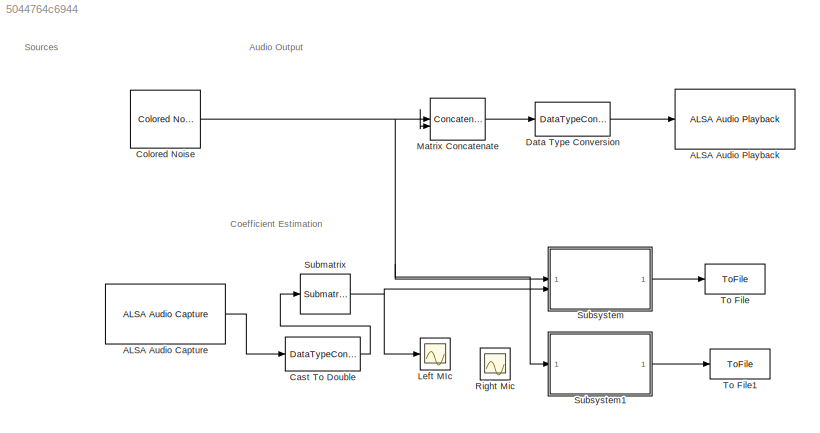
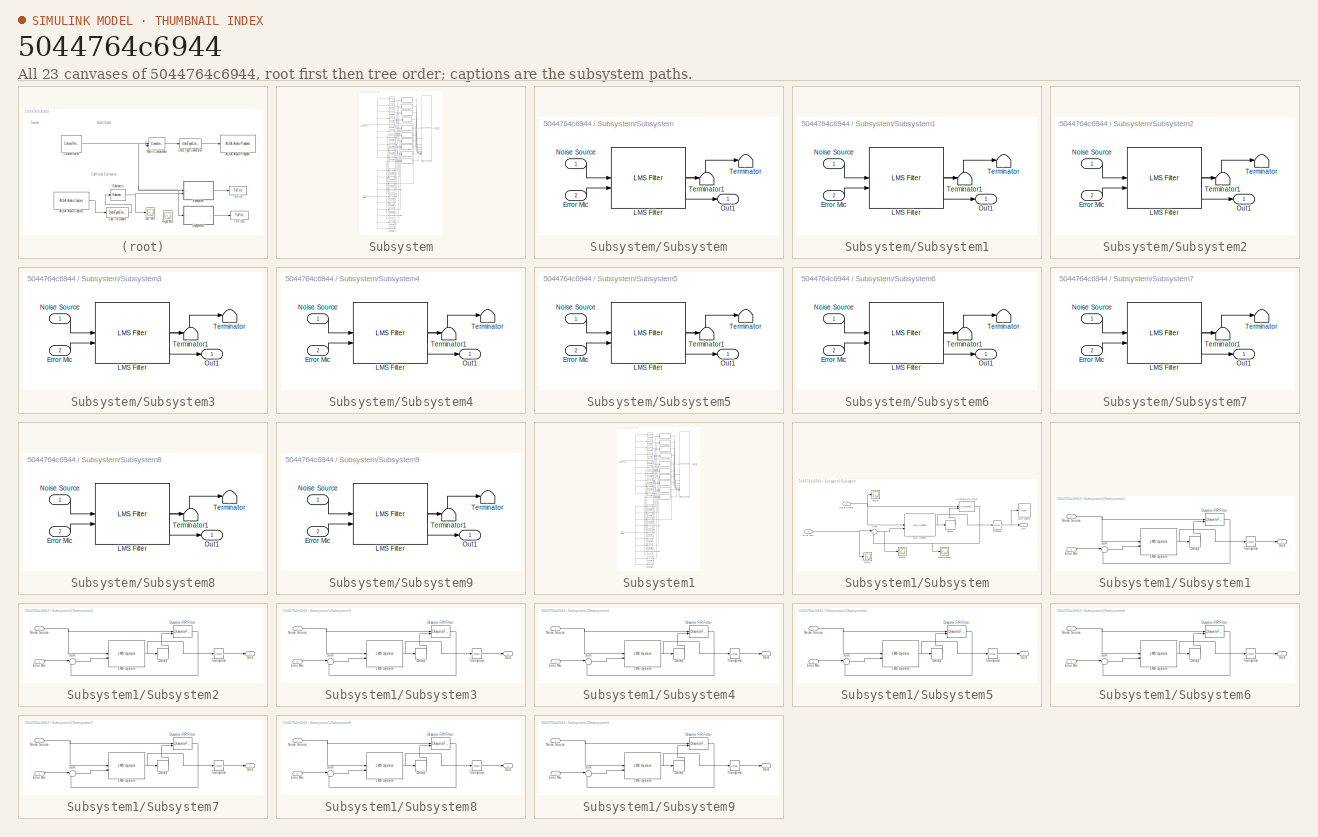
[diagram: thumbnail index - all 23 canvases of the model, root first then tree order]
MODEL slx_5044764c6944
KIND model
CONFIG AbsTol = auto
CONFIG EnableMultiTasking = on
CONFIG FixedStep = auto
CONFIG MaxStep = auto
CONFIG MinStep = auto
CONFIG RelTol = 1e-3
CONFIG SampleTimeConstraint = Unconstrained
CONFIG SolverName = FixedStepAuto
CONFIG StartTime = 0.0
CONFIG StopTime = inf
BLOCK [Reference] ALSA Audio Capture  REF=raspberrypiAVlib/ALSA Audio Capture
  SourceBlock = raspberrypiAVlib/ALSA Audio Capture
  SourceType = codertarget.raspi.internal.RaspiALSAAudioCapture
BLOCK [Reference] ALSA Audio Playback  REF=raspberrypiAVlib/ALSA Audio Playback
  SourceBlock = raspberrypiAVlib/ALSA Audio Playback
  SourceType = codertarget.raspi.internal.RaspiALSAAudioPlayback
BLOCK [DataTypeConversion] Cast To Double
  OutDataTypeStr = double
  RndMeth = Floor
  SaturateOnIntegerOverflow = off
BLOCK [Reference] Colored Noise  REF=dspsrcs4/Colored Noise
  LibrarySourceBlock = audiosources/Colored Noise
  SourceBlock = dspsrcs4/Colored Noise
  SourceType = dsp.simulink.ColoredNoise
BLOCK [DataTypeConversion] Data Type Conversion
  OutDataTypeStr = int16
  RndMeth = Floor
  SaturateOnIntegerOverflow = off
BLOCK [Scope] Left MIc
  Commented = on
  Floating = off
  NumInputPorts = 1
  ScopeSpecificationString = Simulink.scopes.TimeScopeBlockCfg('CurrentConfiguration', extmgr.ConfigurationSet(extmgr.Configuration('Core','General UI',true),extmgr.Configuration('Core','Source UI',true),extmgr.Configuration('Sources','WiredSimulink',true),extmgr.Configuration('Visuals','Time Domain',true,'SerializedDisplays',{struct('MinYLimReal','-5409.625','MaxYLimReal','4796.625','YLabelReal','','MinYLimMag','  0.00000','...<+1652ch>
BLOCK [Concatenate] Matrix Concatenate
  ConcatenateDimension = 2
  Mode = Multidimensional array
BLOCK [Scope] Right Mic
  Commented = on
  Floating = off
  NumInputPorts = 1
  ScopeSpecificationString = Simulink.scopes.TimeScopeBlockCfg('CurrentConfiguration', extmgr.ConfigurationSet(extmgr.Configuration('Core','General UI',true),extmgr.Configuration('Core','Source UI',true),extmgr.Configuration('Sources','WiredSimulink',true,'DataLoggingVariableName','ScopeData1'),extmgr.Configuration('Visuals','Time Domain',true,'SerializedDisplays',{struct('MinYLimReal','-5365.875','MaxYLimReal','4552.875','YL...<+1692ch>
BLOCK [Reference] Submatrix  REF=matrix_library/Submatrix
  LibrarySourceBlock = simulink/Matrix\nOperations/Submatrix
  SourceBlock = matrix_library/Submatrix
  SourceType = Submatrix
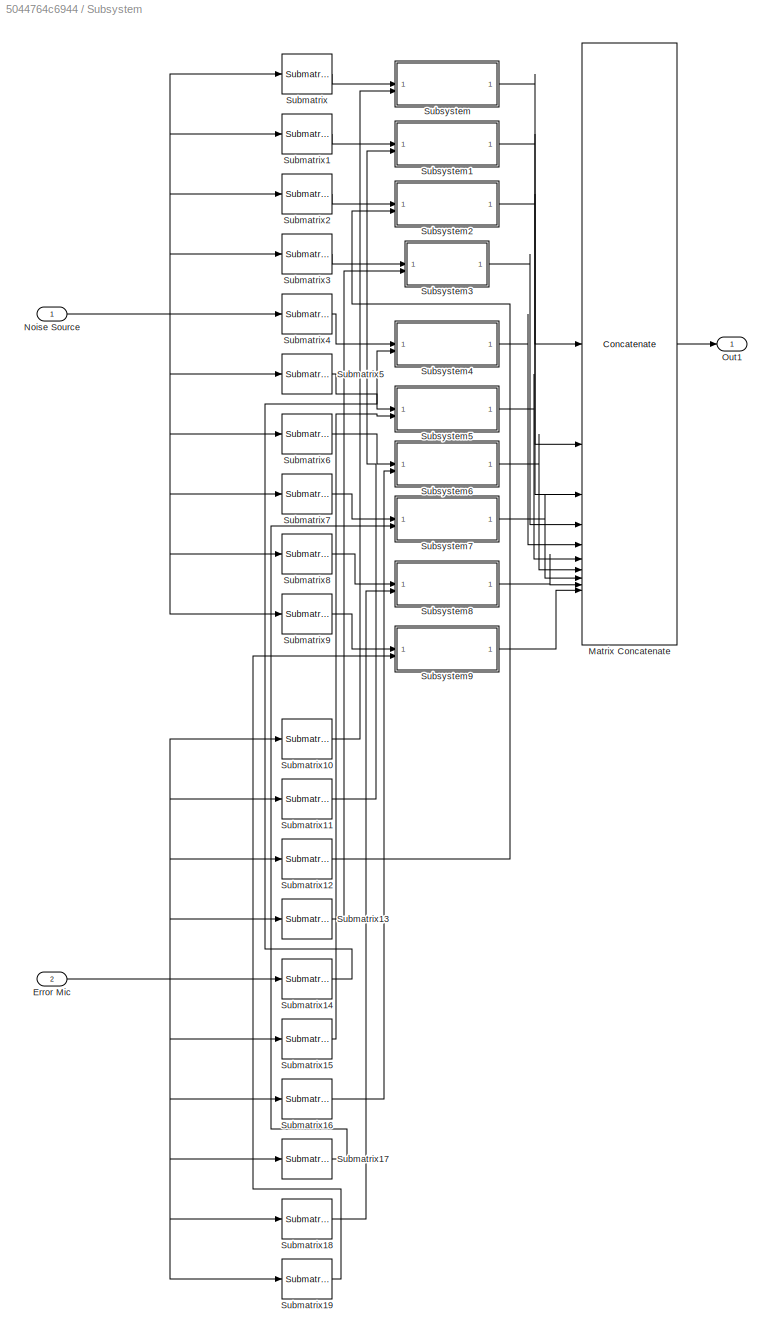
BLOCK [SubSystem] Subsystem
BLOCK [Inport] Subsystem/Error Mic
  Port = 2
BLOCK [Concatenate] Subsystem/Matrix Concatenate
  Mode = Multidimensional array
  NumInputs = 10
BLOCK [Inport] Subsystem/Noise Source
BLOCK [Outport] Subsystem/Out1
BLOCK [Reference] Subsystem/Submatrix  REF=matrix_library/Submatrix
  LibrarySourceBlock = simulink/Matrix\nOperations/Submatrix
  SourceBlock = matrix_library/Submatrix
  SourceType = Submatrix
BLOCK [Reference] Subsystem/Submatrix1  REF=matrix_library/Submatrix
  LibrarySourceBlock = simulink/Matrix\nOperations/Submatrix
  SourceBlock = matrix_library/Submatrix
  SourceType = Submatrix
BLOCK [Reference] Subsystem/Submatrix10  REF=matrix_library/Submatrix
  LibrarySourceBlock = simulink/Matrix\nOperations/Submatrix
  SourceBlock = matrix_library/Submatrix
  SourceType = Submatrix
BLOCK [Reference] Subsystem/Submatrix11  REF=matrix_library/Submatrix
  LibrarySourceBlock = simulink/Matrix\nOperations/Submatrix
  SourceBlock = matrix_library/Submatrix
  SourceType = Submatrix
BLOCK [Reference] Subsystem/Submatrix12  REF=matrix_library/Submatrix
  LibrarySourceBlock = simulink/Matrix\nOperations/Submatrix
  SourceBlock = matrix_library/Submatrix
  SourceType = Submatrix
BLOCK [Reference] Subsystem/Submatrix13  REF=matrix_library/Submatrix
  LibrarySourceBlock = simulink/Matrix\nOperations/Submatrix
  SourceBlock = matrix_library/Submatrix
  SourceType = Submatrix
BLOCK [Reference] Subsystem/Submatrix14  REF=matrix_library/Submatrix
  LibrarySourceBlock = simulink/Matrix\nOperations/Submatrix
  SourceBlock = matrix_library/Submatrix
  SourceType = Submatrix
BLOCK [Reference] Subsystem/Submatrix15  REF=matrix_library/Submatrix
  LibrarySourceBlock = simulink/Matrix\nOperations/Submatrix
  SourceBlock = matrix_library/Submatrix
  SourceType = Submatrix
BLOCK [Reference] Subsystem/Submatrix16  REF=matrix_library/Submatrix
  LibrarySourceBlock = simulink/Matrix\nOperations/Submatrix
  SourceBlock = matrix_library/Submatrix
  SourceType = Submatrix
BLOCK [Reference] Subsystem/Submatrix17  REF=matrix_library/Submatrix
  LibrarySourceBlock = simulink/Matrix\nOperations/Submatrix
  SourceBlock = matrix_library/Submatrix
  SourceType = Submatrix
BLOCK [Reference] Subsystem/Submatrix18  REF=matrix_library/Submatrix
  LibrarySourceBlock = simulink/Matrix\nOperations/Submatrix
  SourceBlock = matrix_library/Submatrix
  SourceType = Submatrix
BLOCK [Reference] Subsystem/Submatrix19  REF=matrix_library/Submatrix
  LibrarySourceBlock = simulink/Matrix\nOperations/Submatrix
  SourceBlock = matrix_library/Submatrix
  SourceType = Submatrix
BLOCK [Reference] Subsystem/Submatrix2  REF=matrix_library/Submatrix
  LibrarySourceBlock = simulink/Matrix\nOperations/Submatrix
  SourceBlock = matrix_library/Submatrix
  SourceType = Submatrix
BLOCK [Reference] Subsystem/Submatrix3  REF=matrix_library/Submatrix
  LibrarySourceBlock = simulink/Matrix\nOperations/Submatrix
  SourceBlock = matrix_library/Submatrix
  SourceType = Submatrix
BLOCK [Reference] Subsystem/Submatrix4  REF=matrix_library/Submatrix
  LibrarySourceBlock = simulink/Matrix\nOperations/Submatrix
  SourceBlock = matrix_library/Submatrix
  SourceType = Submatrix
BLOCK [Reference] Subsystem/Submatrix5  REF=matrix_library/Submatrix
  LibrarySourceBlock = simulink/Matrix\nOperations/Submatrix
  SourceBlock = matrix_library/Submatrix
  SourceType = Submatrix
BLOCK [Reference] Subsystem/Submatrix6  REF=matrix_library/Submatrix
  LibrarySourceBlock = simulink/Matrix\nOperations/Submatrix
  SourceBlock = matrix_library/Submatrix
  SourceType = Submatrix
BLOCK [Reference] Subsystem/Submatrix7  REF=matrix_library/Submatrix
  LibrarySourceBlock = simulink/Matrix\nOperations/Submatrix
  SourceBlock = matrix_library/Submatrix
  SourceType = Submatrix
BLOCK [Reference] Subsystem/Submatrix8  REF=matrix_library/Submatrix
  LibrarySourceBlock = simulink/Matrix\nOperations/Submatrix
  SourceBlock = matrix_library/Submatrix
  SourceType = Submatrix
BLOCK [Reference] Subsystem/Submatrix9  REF=matrix_library/Submatrix
  LibrarySourceBlock = simulink/Matrix\nOperations/Submatrix
  SourceBlock = matrix_library/Submatrix
  SourceType = Submatrix
BLOCK [SubSystem] Subsystem/Subsystem
BLOCK [Inport] Subsystem/Subsystem/Error Mic
  Port = 2
BLOCK [Reference] Subsystem/Subsystem/LMS Filter  REF=dspadpt3/LMS Filter
  SourceBlock = dspadpt3/LMS Filter
  SourceType = LMS Filter
BLOCK [Inport] Subsystem/Subsystem/Noise Source
BLOCK [Outport] Subsystem/Subsystem/Out1
BLOCK [Terminator] Subsystem/Subsystem/Terminator
BLOCK [Terminator] Subsystem/Subsystem/Terminator1
BLOCK [SubSystem] Subsystem/Subsystem1
BLOCK [Inport] Subsystem/Subsystem1/Error Mic
  Port = 2
BLOCK [Reference] Subsystem/Subsystem1/LMS Filter  REF=dspadpt3/LMS Filter
  SourceBlock = dspadpt3/LMS Filter
  SourceType = LMS Filter
BLOCK [Inport] Subsystem/Subsystem1/Noise Source
BLOCK [Outport] Subsystem/Subsystem1/Out1
BLOCK [Terminator] Subsystem/Subsystem1/Terminator
BLOCK [Terminator] Subsystem/Subsystem1/Terminator1
BLOCK [SubSystem] Subsystem/Subsystem2
BLOCK [Inport] Subsystem/Subsystem2/Error Mic
  Port = 2
BLOCK [Reference] Subsystem/Subsystem2/LMS Filter  REF=dspadpt3/LMS Filter
  SourceBlock = dspadpt3/LMS Filter
  SourceType = LMS Filter
BLOCK [Inport] Subsystem/Subsystem2/Noise Source
BLOCK [Outport] Subsystem/Subsystem2/Out1
BLOCK [Terminator] Subsystem/Subsystem2/Terminator
BLOCK [Terminator] Subsystem/Subsystem2/Terminator1
BLOCK [SubSystem] Subsystem/Subsystem3
BLOCK [Inport] Subsystem/Subsystem3/Error Mic
  Port = 2
BLOCK [Reference] Subsystem/Subsystem3/LMS Filter  REF=dspadpt3/LMS Filter
  SourceBlock = dspadpt3/LMS Filter
  SourceType = LMS Filter
BLOCK [Inport] Subsystem/Subsystem3/Noise Source
BLOCK [Outport] Subsystem/Subsystem3/Out1
BLOCK [Terminator] Subsystem/Subsystem3/Terminator
BLOCK [Terminator] Subsystem/Subsystem3/Terminator1
BLOCK [SubSystem] Subsystem/Subsystem4
BLOCK [Inport] Subsystem/Subsystem4/Error Mic
  Port = 2
BLOCK [Reference] Subsystem/Subsystem4/LMS Filter  REF=dspadpt3/LMS Filter
  SourceBlock = dspadpt3/LMS Filter
  SourceType = LMS Filter
BLOCK [Inport] Subsystem/Subsystem4/Noise Source
BLOCK [Outport] Subsystem/Subsystem4/Out1
BLOCK [Terminator] Subsystem/Subsystem4/Terminator
BLOCK [Terminator] Subsystem/Subsystem4/Terminator1
BLOCK [SubSystem] Subsystem/Subsystem5
BLOCK [Inport] Subsystem/Subsystem5/Error Mic
  Port = 2
BLOCK [Reference] Subsystem/Subsystem5/LMS Filter  REF=dspadpt3/LMS Filter
  SourceBlock = dspadpt3/LMS Filter
  SourceType = LMS Filter
BLOCK [Inport] Subsystem/Subsystem5/Noise Source
BLOCK [Outport] Subsystem/Subsystem5/Out1
BLOCK [Terminator] Subsystem/Subsystem5/Terminator
BLOCK [Terminator] Subsystem/Subsystem5/Terminator1
BLOCK [SubSystem] Subsystem/Subsystem6
BLOCK [Inport] Subsystem/Subsystem6/Error Mic
  Port = 2
BLOCK [Reference] Subsystem/Subsystem6/LMS Filter  REF=dspadpt3/LMS Filter
  SourceBlock = dspadpt3/LMS Filter
  SourceType = LMS Filter
BLOCK [Inport] Subsystem/Subsystem6/Noise Source
BLOCK [Outport] Subsystem/Subsystem6/Out1
BLOCK [Terminator] Subsystem/Subsystem6/Terminator
BLOCK [Terminator] Subsystem/Subsystem6/Terminator1
BLOCK [SubSystem] Subsystem/Subsystem7
BLOCK [Inport] Subsystem/Subsystem7/Error Mic
  Port = 2
BLOCK [Reference] Subsystem/Subsystem7/LMS Filter  REF=dspadpt3/LMS Filter
  SourceBlock = dspadpt3/LMS Filter
  SourceType = LMS Filter
BLOCK [Inport] Subsystem/Subsystem7/Noise Source
BLOCK [Outport] Subsystem/Subsystem7/Out1
BLOCK [Terminator] Subsystem/Subsystem7/Terminator
BLOCK [Terminator] Subsystem/Subsystem7/Terminator1
BLOCK [SubSystem] Subsystem/Subsystem8
BLOCK [Inport] Subsystem/Subsystem8/Error Mic
  Port = 2
BLOCK [Reference] Subsystem/Subsystem8/LMS Filter  REF=dspadpt3/LMS Filter
  SourceBlock = dspadpt3/LMS Filter
  SourceType = LMS Filter
BLOCK [Inport] Subsystem/Subsystem8/Noise Source
BLOCK [Outport] Subsystem/Subsystem8/Out1
BLOCK [Terminator] Subsystem/Subsystem8/Terminator
BLOCK [Terminator] Subsystem/Subsystem8/Terminator1
BLOCK [SubSystem] Subsystem/Subsystem9
BLOCK [Inport] Subsystem/Subsystem9/Error Mic
  Port = 2
BLOCK [Reference] Subsystem/Subsystem9/LMS Filter  REF=dspadpt3/LMS Filter
  SourceBlock = dspadpt3/LMS Filter
  SourceType = LMS Filter
BLOCK [Inport] Subsystem/Subsystem9/Noise Source
BLOCK [Outport] Subsystem/Subsystem9/Out1
BLOCK [Terminator] Subsystem/Subsystem9/Terminator
BLOCK [Terminator] Subsystem/Subsystem9/Terminator1
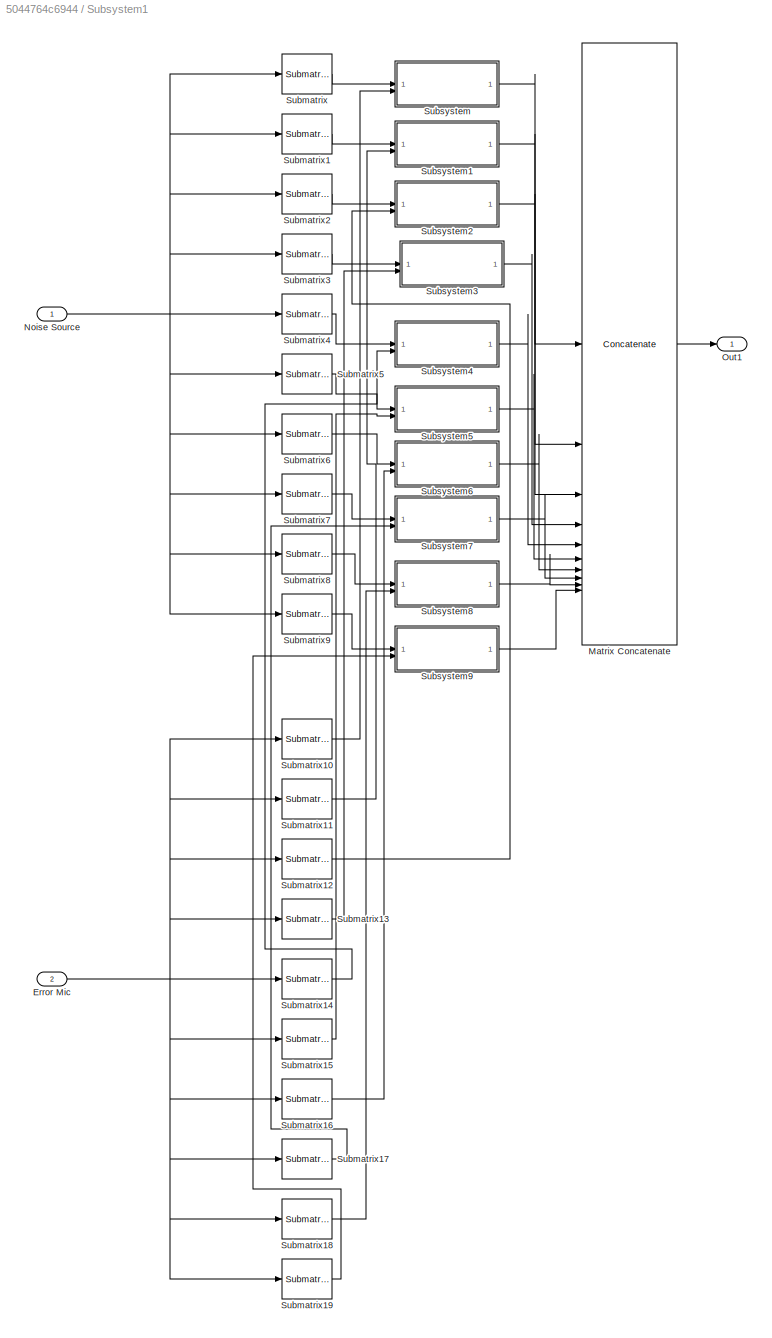
BLOCK [SubSystem] Subsystem1
  Commented = on
BLOCK [Inport] Subsystem1/Error Mic
  Port = 2
BLOCK [Concatenate] Subsystem1/Matrix Concatenate
  Mode = Multidimensional array
  NumInputs = 10
BLOCK [Inport] Subsystem1/Noise Source
BLOCK [Outport] Subsystem1/Out1
BLOCK [Reference] Subsystem1/Submatrix  REF=matrix_library/Submatrix
  LibrarySourceBlock = simulink/Matrix\nOperations/Submatrix
  SourceBlock = matrix_library/Submatrix
  SourceType = Submatrix
BLOCK [Reference] Subsystem1/Submatrix1  REF=matrix_library/Submatrix
  LibrarySourceBlock = simulink/Matrix\nOperations/Submatrix
  SourceBlock = matrix_library/Submatrix
  SourceType = Submatrix
BLOCK [Reference] Subsystem1/Submatrix10  REF=matrix_library/Submatrix
  LibrarySourceBlock = simulink/Matrix\nOperations/Submatrix
  SourceBlock = matrix_library/Submatrix
  SourceType = Submatrix
BLOCK [Reference] Subsystem1/Submatrix11  REF=matrix_library/Submatrix
  LibrarySourceBlock = simulink/Matrix\nOperations/Submatrix
  SourceBlock = matrix_library/Submatrix
  SourceType = Submatrix
BLOCK [Reference] Subsystem1/Submatrix12  REF=matrix_library/Submatrix
  LibrarySourceBlock = simulink/Matrix\nOperations/Submatrix
  SourceBlock = matrix_library/Submatrix
  SourceType = Submatrix
BLOCK [Reference] Subsystem1/Submatrix13  REF=matrix_library/Submatrix
  LibrarySourceBlock = simulink/Matrix\nOperations/Submatrix
  SourceBlock = matrix_library/Submatrix
  SourceType = Submatrix
BLOCK [Reference] Subsystem1/Submatrix14  REF=matrix_library/Submatrix
  LibrarySourceBlock = simulink/Matrix\nOperations/Submatrix
  SourceBlock = matrix_library/Submatrix
  SourceType = Submatrix
BLOCK [Reference] Subsystem1/Submatrix15  REF=matrix_library/Submatrix
  LibrarySourceBlock = simulink/Matrix\nOperations/Submatrix
  SourceBlock = matrix_library/Submatrix
  SourceType = Submatrix
BLOCK [Reference] Subsystem1/Submatrix16  REF=matrix_library/Submatrix
  LibrarySourceBlock = simulink/Matrix\nOperations/Submatrix
  SourceBlock = matrix_library/Submatrix
  SourceType = Submatrix
BLOCK [Reference] Subsystem1/Submatrix17  REF=matrix_library/Submatrix
  LibrarySourceBlock = simulink/Matrix\nOperations/Submatrix
  SourceBlock = matrix_library/Submatrix
  SourceType = Submatrix
BLOCK [Reference] Subsystem1/Submatrix18  REF=matrix_library/Submatrix
  LibrarySourceBlock = simulink/Matrix\nOperations/Submatrix
  SourceBlock = matrix_library/Submatrix
  SourceType = Submatrix
BLOCK [Reference] Subsystem1/Submatrix19  REF=matrix_library/Submatrix
  LibrarySourceBlock = simulink/Matrix\nOperations/Submatrix
  SourceBlock = matrix_library/Submatrix
  SourceType = Submatrix
BLOCK [Reference] Subsystem1/Submatrix2  REF=matrix_library/Submatrix
  LibrarySourceBlock = simulink/Matrix\nOperations/Submatrix
  SourceBlock = matrix_library/Submatrix
  SourceType = Submatrix
BLOCK [Reference] Subsystem1/Submatrix3  REF=matrix_library/Submatrix
  LibrarySourceBlock = simulink/Matrix\nOperations/Submatrix
  SourceBlock = matrix_library/Submatrix
  SourceType = Submatrix
BLOCK [Reference] Subsystem1/Submatrix4  REF=matrix_library/Submatrix
  LibrarySourceBlock = simulink/Matrix\nOperations/Submatrix
  SourceBlock = matrix_library/Submatrix
  SourceType = Submatrix
BLOCK [Reference] Subsystem1/Submatrix5  REF=matrix_library/Submatrix
  LibrarySourceBlock = simulink/Matrix\nOperations/Submatrix
  SourceBlock = matrix_library/Submatrix
  SourceType = Submatrix
BLOCK [Reference] Subsystem1/Submatrix6  REF=matrix_library/Submatrix
  LibrarySourceBlock = simulink/Matrix\nOperations/Submatrix
  SourceBlock = matrix_library/Submatrix
  SourceType = Submatrix
BLOCK [Reference] Subsystem1/Submatrix7  REF=matrix_library/Submatrix
  LibrarySourceBlock = simulink/Matrix\nOperations/Submatrix
  SourceBlock = matrix_library/Submatrix
  SourceType = Submatrix
BLOCK [Reference] Subsystem1/Submatrix8  REF=matrix_library/Submatrix
  LibrarySourceBlock = simulink/Matrix\nOperations/Submatrix
  SourceBlock = matrix_library/Submatrix
  SourceType = Submatrix
BLOCK [Reference] Subsystem1/Submatrix9  REF=matrix_library/Submatrix
  LibrarySourceBlock = simulink/Matrix\nOperations/Submatrix
  SourceBlock = matrix_library/Submatrix
  SourceType = Submatrix
BLOCK [SubSystem] Subsystem1/Subsystem
BLOCK [Delay] Subsystem1/Subsystem/Delay
  DelayLength = 1
  InitialCondition = 0
  InputPortMap = u0
BLOCK [DiscreteFir] Subsystem1/Subsystem/Discrete FIR Filter
  CoefSource = Input port
  InputPortMap = u0,u1
  OutputPortMap = o0
BLOCK [Inport] Subsystem1/Subsystem/Error Mic
  Port = 2
BLOCK [Reference] Subsystem1/Subsystem/LMS Update  REF=dspadpt3/LMS Update
  SourceBlock = dspadpt3/LMS Update
  SourceType = dsp.simulink.LMSUpdate
BLOCK [ArrayPlot] Subsystem1/Subsystem/LMS coeffs
  AxesScaling = Manual
  Commented = on
  DefaultConfigurationName = dsp.scopes.ArrayPlotBlockSpecification
  GraphicalSettings = {"Style":{"BackgroundColor":[0.12941176470588237,0.12941176470588237,0.12941176470588237],"AxesColor":[0,0,0],"LabelsColor":[0.6862745098039216,0.6862745098039216,0.6862745098039216],"PreserveColors":false,"Visible":[true],"LineStyle":["-"],"LineColor":[[1,1,0.06666666666666667]],"LineWidth":[1.5],"Marker":["o"],"FontSize":"small"},"Cursors":{"Enabled":false,"XLocation":[2,8],"YLocation":[2,8],"Sn...<+480ch>
  ScopeFrameLocation = window
  WasSavedAsWebScope = on
  WindowPosition = [481.000000,152.000000,800.000000,500.000000,]
  YLimits = [-0.624999,0.624999]
BLOCK [Inport] Subsystem1/Subsystem/Noise Source
BLOCK [Outport] Subsystem1/Subsystem/Out1
BLOCK [Scope] Subsystem1/Subsystem/Rerror
  Floating = off
  NumInputPorts = 1
  ScopeSpecificationString = Simulink.scopes.TimeScopeBlockCfg('CurrentConfiguration', extmgr.ConfigurationSet(extmgr.Configuration('Core','General UI',true),extmgr.Configuration('Core','Source UI',true),extmgr.Configuration('Sources','WiredSimulink',true,'DataLoggingVariableName','ScopeData2'),extmgr.Configuration('Visuals','Time Domain',true,'SerializedDisplays',{struct('MinYLimReal','-1160.6633','MaxYLimReal','1192.98251',...<+1480ch>
BLOCK [Scope] Subsystem1/Subsystem/Restimated
  Floating = off
  NumInputPorts = 1
  ScopeSpecificationString = Simulink.scopes.TimeScopeBlockCfg('CurrentConfiguration', extmgr.ConfigurationSet(extmgr.Configuration('Core','General UI',true),extmgr.Configuration('Core','Source UI',true),extmgr.Configuration('Sources','WiredSimulink',true,'DataLoggingVariableName','ScopeData4'),extmgr.Configuration('Visuals','Time Domain',true,'SerializedDisplays',{struct('MinYLimReal','-3885.47222','MaxYLimReal','3941.17006'...<+1457ch>
BLOCK [Scope] Subsystem1/Subsystem/Rmic
  Floating = off
  NumInputPorts = 1
  ScopeSpecificationString = Simulink.scopes.TimeScopeBlockCfg('CurrentConfiguration', extmgr.ConfigurationSet(extmgr.Configuration('Core','General UI',true),extmgr.Configuration('Core','Source UI',true),extmgr.Configuration('Sources','WiredSimulink',true,'DataLoggingVariableName','ScopeData3'),extmgr.Configuration('Visuals','Time Domain',true,'SerializedDisplays',{struct('MinYLimReal','-7030.125','MaxYLimReal','5931.125','YL...<+1449ch>
BLOCK [Sum] Subsystem1/Subsystem/Sum
  Inputs = |+-
BLOCK [Math] Subsystem1/Subsystem/Transpose
  Operator = transpose
BLOCK [Scope] Subsystem1/Subsystem/source
  Commented = on
  Floating = off
  NumInputPorts = 1
  ScopeSpecificationString = Simulink.scopes.TimeScopeBlockCfg('CurrentConfiguration', extmgr.ConfigurationSet(extmgr.Configuration('Core','General UI',true),extmgr.Configuration('Core','Source UI',true),extmgr.Configuration('Sources','WiredSimulink',true,'DataLoggingVariableName','ScopeData5'),extmgr.Configuration('Visuals','Time Domain',true,'SerializedDisplays',{struct('MinYLimReal','-37497.85907','MaxYLimReal','37497.8590...<+1481ch>
BLOCK [SubSystem] Subsystem1/Subsystem1
BLOCK [Delay] Subsystem1/Subsystem1/Delay
  DelayLength = 1
  InitialCondition = 0
  InputPortMap = u0
BLOCK [DiscreteFir] Subsystem1/Subsystem1/Discrete FIR Filter
  CoefSource = Input port
  InputPortMap = u0,u1
  OutputPortMap = o0
BLOCK [Inport] Subsystem1/Subsystem1/Error Mic
  Port = 2
BLOCK [Reference] Subsystem1/Subsystem1/LMS Update  REF=dspadpt3/LMS Update
  SourceBlock = dspadpt3/LMS Update
  SourceType = dsp.simulink.LMSUpdate
BLOCK [Inport] Subsystem1/Subsystem1/Noise Source
BLOCK [Outport] Subsystem1/Subsystem1/Out1
BLOCK [Sum] Subsystem1/Subsystem1/Sum
  Inputs = |+-
BLOCK [Math] Subsystem1/Subsystem1/Transpose
  Operator = transpose
BLOCK [SubSystem] Subsystem1/Subsystem2
BLOCK [Delay] Subsystem1/Subsystem2/Delay
  DelayLength = 1
  InitialCondition = 0
  InputPortMap = u0
BLOCK [DiscreteFir] Subsystem1/Subsystem2/Discrete FIR Filter
  CoefSource = Input port
  InputPortMap = u0,u1
  OutputPortMap = o0
BLOCK [Inport] Subsystem1/Subsystem2/Error Mic
  Port = 2
BLOCK [Reference] Subsystem1/Subsystem2/LMS Update  REF=dspadpt3/LMS Update
  SourceBlock = dspadpt3/LMS Update
  SourceType = dsp.simulink.LMSUpdate
BLOCK [Inport] Subsystem1/Subsystem2/Noise Source
BLOCK [Outport] Subsystem1/Subsystem2/Out1
BLOCK [Sum] Subsystem1/Subsystem2/Sum
  Inputs = |+-
BLOCK [Math] Subsystem1/Subsystem2/Transpose
  Operator = transpose
BLOCK [SubSystem] Subsystem1/Subsystem3
BLOCK [Delay] Subsystem1/Subsystem3/Delay
  DelayLength = 1
  InitialCondition = 0
  InputPortMap = u0
BLOCK [DiscreteFir] Subsystem1/Subsystem3/Discrete FIR Filter
  CoefSource = Input port
  InputPortMap = u0,u1
  OutputPortMap = o0
BLOCK [Inport] Subsystem1/Subsystem3/Error Mic
  Port = 2
BLOCK [Reference] Subsystem1/Subsystem3/LMS Update  REF=dspadpt3/LMS Update
  SourceBlock = dspadpt3/LMS Update
  SourceType = dsp.simulink.LMSUpdate
BLOCK [Inport] Subsystem1/Subsystem3/Noise Source
BLOCK [Outport] Subsystem1/Subsystem3/Out1
BLOCK [Sum] Subsystem1/Subsystem3/Sum
  Inputs = |+-
BLOCK [Math] Subsystem1/Subsystem3/Transpose
  Operator = transpose
BLOCK [SubSystem] Subsystem1/Subsystem4
BLOCK [Delay] Subsystem1/Subsystem4/Delay
  DelayLength = 1
  InitialCondition = 0
  InputPortMap = u0
BLOCK [DiscreteFir] Subsystem1/Subsystem4/Discrete FIR Filter
  CoefSource = Input port
  InputPortMap = u0,u1
  OutputPortMap = o0
BLOCK [Inport] Subsystem1/Subsystem4/Error Mic
  Port = 2
BLOCK [Reference] Subsystem1/Subsystem4/LMS Update  REF=dspadpt3/LMS Update
  SourceBlock = dspadpt3/LMS Update
  SourceType = dsp.simulink.LMSUpdate
BLOCK [Inport] Subsystem1/Subsystem4/Noise Source
BLOCK [Outport] Subsystem1/Subsystem4/Out1
BLOCK [Sum] Subsystem1/Subsystem4/Sum
  Inputs = |+-
BLOCK [Math] Subsystem1/Subsystem4/Transpose
  Operator = transpose
BLOCK [SubSystem] Subsystem1/Subsystem5
BLOCK [Delay] Subsystem1/Subsystem5/Delay
  DelayLength = 1
  InitialCondition = 0
  InputPortMap = u0
BLOCK [DiscreteFir] Subsystem1/Subsystem5/Discrete FIR Filter
  CoefSource = Input port
  InputPortMap = u0,u1
  OutputPortMap = o0
BLOCK [Inport] Subsystem1/Subsystem5/Error Mic
  Port = 2
BLOCK [Reference] Subsystem1/Subsystem5/LMS Update  REF=dspadpt3/LMS Update
  SourceBlock = dspadpt3/LMS Update
  SourceType = dsp.simulink.LMSUpdate
BLOCK [Inport] Subsystem1/Subsystem5/Noise Source
BLOCK [Outport] Subsystem1/Subsystem5/Out1
BLOCK [Sum] Subsystem1/Subsystem5/Sum
  Inputs = |+-
BLOCK [Math] Subsystem1/Subsystem5/Transpose
  Operator = transpose
BLOCK [SubSystem] Subsystem1/Subsystem6
BLOCK [Delay] Subsystem1/Subsystem6/Delay
  DelayLength = 1
  InitialCondition = 0
  InputPortMap = u0
BLOCK [DiscreteFir] Subsystem1/Subsystem6/Discrete FIR Filter
  CoefSource = Input port
  InputPortMap = u0,u1
  OutputPortMap = o0
BLOCK [Inport] Subsystem1/Subsystem6/Error Mic
  Port = 2
BLOCK [Reference] Subsystem1/Subsystem6/LMS Update  REF=dspadpt3/LMS Update
  SourceBlock = dspadpt3/LMS Update
  SourceType = dsp.simulink.LMSUpdate
BLOCK [Inport] Subsystem1/Subsystem6/Noise Source
BLOCK [Outport] Subsystem1/Subsystem6/Out1
BLOCK [Sum] Subsystem1/Subsystem6/Sum
  Inputs = |+-
BLOCK [Math] Subsystem1/Subsystem6/Transpose
  Operator = transpose
BLOCK [SubSystem] Subsystem1/Subsystem7
BLOCK [Delay] Subsystem1/Subsystem7/Delay
  DelayLength = 1
  InitialCondition = 0
  InputPortMap = u0
BLOCK [DiscreteFir] Subsystem1/Subsystem7/Discrete FIR Filter
  CoefSource = Input port
  InputPortMap = u0,u1
  OutputPortMap = o0
BLOCK [Inport] Subsystem1/Subsystem7/Error Mic
  Port = 2
BLOCK [Reference] Subsystem1/Subsystem7/LMS Update  REF=dspadpt3/LMS Update
  SourceBlock = dspadpt3/LMS Update
  SourceType = dsp.simulink.LMSUpdate
BLOCK [Inport] Subsystem1/Subsystem7/Noise Source
BLOCK [Outport] Subsystem1/Subsystem7/Out1
BLOCK [Sum] Subsystem1/Subsystem7/Sum
  Inputs = |+-
BLOCK [Math] Subsystem1/Subsystem7/Transpose
  Operator = transpose
BLOCK [SubSystem] Subsystem1/Subsystem8
BLOCK [Delay] Subsystem1/Subsystem8/Delay
  DelayLength = 1
  InitialCondition = 0
  InputPortMap = u0
BLOCK [DiscreteFir] Subsystem1/Subsystem8/Discrete FIR Filter
  CoefSource = Input port
  InputPortMap = u0,u1
  OutputPortMap = o0
BLOCK [Inport] Subsystem1/Subsystem8/Error Mic
  Port = 2
BLOCK [Reference] Subsystem1/Subsystem8/LMS Update  REF=dspadpt3/LMS Update
  SourceBlock = dspadpt3/LMS Update
  SourceType = dsp.simulink.LMSUpdate
BLOCK [Inport] Subsystem1/Subsystem8/Noise Source
BLOCK [Outport] Subsystem1/Subsystem8/Out1
BLOCK [Sum] Subsystem1/Subsystem8/Sum
  Inputs = |+-
BLOCK [Math] Subsystem1/Subsystem8/Transpose
  Operator = transpose
BLOCK [SubSystem] Subsystem1/Subsystem9
BLOCK [Delay] Subsystem1/Subsystem9/Delay
  DelayLength = 1
  InitialCondition = 0
  InputPortMap = u0
BLOCK [DiscreteFir] Subsystem1/Subsystem9/Discrete FIR Filter
  CoefSource = Input port
  InputPortMap = u0,u1
  OutputPortMap = o0
BLOCK [Inport] Subsystem1/Subsystem9/Error Mic
  Port = 2
BLOCK [Reference] Subsystem1/Subsystem9/LMS Update  REF=dspadpt3/LMS Update
  SourceBlock = dspadpt3/LMS Update
  SourceType = dsp.simulink.LMSUpdate
BLOCK [Inport] Subsystem1/Subsystem9/Noise Source
BLOCK [Outport] Subsystem1/Subsystem9/Out1
BLOCK [Sum] Subsystem1/Subsystem9/Sum
  Inputs = |+-
BLOCK [Math] Subsystem1/Subsystem9/Transpose
  Operator = transpose
BLOCK [ToFile] To File
  Filename = lcoeffs.mat
BLOCK [ToFile] To File1
  Commented = on
  Filename = rcoeffs.mat
ANNOTATION (root): Audio Output
ANNOTATION (root): Coefficient Estimation
ANNOTATION (root): Sources
LINE ALSA Audio Capture:1 -> Cast To Double:1
LINE Cast To Double:1 -> Submatrix:1
NET Colored Noise:1 -> Matrix Concatenate:1, Matrix Concatenate:2, Subsystem1:1, Subsystem:1
LINE Data Type Conversion:1 -> ALSA Audio Playback:1
LINE Matrix Concatenate:1 -> Data Type Conversion:1
NET Submatrix:1 -> Left MIc:1, Subsystem:2
NET Subsystem/Error Mic:1 -> Subsystem/Submatrix10:1, Subsystem/Submatrix11:1, Subsystem/Submatrix12:1, Subsystem/Submatrix13:1, Subsystem/Submatrix14:1, Subsystem/Submatrix15:1, Subsystem/Submatrix16:1, Subsystem/Submatrix17:1, Subsystem/Submatrix18:1, Subsystem/Submatrix19:1
LINE Subsystem/Matrix Concatenate:1 -> Subsystem/Out1:1
NET Subsystem/Noise Source:1 -> Subsystem/Submatrix1:1, Subsystem/Submatrix2:1, Subsystem/Submatrix3:1, Subsystem/Submatrix4:1, Subsystem/Submatrix5:1, Subsystem/Submatrix6:1, Subsystem/Submatrix7:1, Subsystem/Submatrix8:1, Subsystem/Submatrix9:1, Subsystem/Submatrix:1
LINE Subsystem/Submatrix10:1 -> Subsystem/Subsystem:2
LINE Subsystem/Submatrix11:1 -> Subsystem/Subsystem1:2
LINE Subsystem/Submatrix12:1 -> Subsystem/Subsystem2:2
LINE Subsystem/Submatrix13:1 -> Subsystem/Subsystem3:2
LINE Subsystem/Submatrix14:1 -> Subsystem/Subsystem4:2
LINE Subsystem/Submatrix15:1 -> Subsystem/Subsystem5:2
LINE Subsystem/Submatrix16:1 -> Subsystem/Subsystem6:2
LINE Subsystem/Submatrix17:1 -> Subsystem/Subsystem7:2
LINE Subsystem/Submatrix18:1 -> Subsystem/Subsystem8:2
LINE Subsystem/Submatrix19:1 -> Subsystem/Subsystem9:2
LINE Subsystem/Submatrix1:1 -> Subsystem/Subsystem1:1
LINE Subsystem/Submatrix2:1 -> Subsystem/Subsystem2:1
LINE Subsystem/Submatrix3:1 -> Subsystem/Subsystem3:1
LINE Subsystem/Submatrix4:1 -> Subsystem/Subsystem4:1
LINE Subsystem/Submatrix5:1 -> Subsystem/Subsystem5:1
LINE Subsystem/Submatrix6:1 -> Subsystem/Subsystem6:1
LINE Subsystem/Submatrix7:1 -> Subsystem/Subsystem7:1
LINE Subsystem/Submatrix8:1 -> Subsystem/Subsystem8:1
LINE Subsystem/Submatrix9:1 -> Subsystem/Subsystem9:1
LINE Subsystem/Submatrix:1 -> Subsystem/Subsystem:1
LINE Subsystem/Subsystem/Error Mic:1 -> Subsystem/Subsystem/LMS Filter:2
LINE Subsystem/Subsystem/LMS Filter:1 -> Subsystem/Subsystem/Terminator:1
LINE Subsystem/Subsystem/LMS Filter:2 -> Subsystem/Subsystem/Terminator1:1
LINE Subsystem/Subsystem/LMS Filter:3 -> Subsystem/Subsystem/Out1:1
LINE Subsystem/Subsystem/Noise Source:1 -> Subsystem/Subsystem/LMS Filter:1
LINE Subsystem/Subsystem1/Error Mic:1 -> Subsystem/Subsystem1/LMS Filter:2
LINE Subsystem/Subsystem1/LMS Filter:1 -> Subsystem/Subsystem1/Terminator:1
LINE Subsystem/Subsystem1/LMS Filter:2 -> Subsystem/Subsystem1/Terminator1:1
LINE Subsystem/Subsystem1/LMS Filter:3 -> Subsystem/Subsystem1/Out1:1
LINE Subsystem/Subsystem1/Noise Source:1 -> Subsystem/Subsystem1/LMS Filter:1
LINE Subsystem/Subsystem1:1 -> Subsystem/Matrix Concatenate:2
LINE Subsystem/Subsystem2/Error Mic:1 -> Subsystem/Subsystem2/LMS Filter:2
LINE Subsystem/Subsystem2/LMS Filter:1 -> Subsystem/Subsystem2/Terminator:1
LINE Subsystem/Subsystem2/LMS Filter:2 -> Subsystem/Subsystem2/Terminator1:1
LINE Subsystem/Subsystem2/LMS Filter:3 -> Subsystem/Subsystem2/Out1:1
LINE Subsystem/Subsystem2/Noise Source:1 -> Subsystem/Subsystem2/LMS Filter:1
LINE Subsystem/Subsystem2:1 -> Subsystem/Matrix Concatenate:3
LINE Subsystem/Subsystem3/Error Mic:1 -> Subsystem/Subsystem3/LMS Filter:2
LINE Subsystem/Subsystem3/LMS Filter:1 -> Subsystem/Subsystem3/Terminator:1
LINE Subsystem/Subsystem3/LMS Filter:2 -> Subsystem/Subsystem3/Terminator1:1
LINE Subsystem/Subsystem3/LMS Filter:3 -> Subsystem/Subsystem3/Out1:1
LINE Subsystem/Subsystem3/Noise Source:1 -> Subsystem/Subsystem3/LMS Filter:1
LINE Subsystem/Subsystem3:1 -> Subsystem/Matrix Concatenate:4
LINE Subsystem/Subsystem4/Error Mic:1 -> Subsystem/Subsystem4/LMS Filter:2
LINE Subsystem/Subsystem4/LMS Filter:1 -> Subsystem/Subsystem4/Terminator:1
LINE Subsystem/Subsystem4/LMS Filter:2 -> Subsystem/Subsystem4/Terminator1:1
LINE Subsystem/Subsystem4/LMS Filter:3 -> Subsystem/Subsystem4/Out1:1
LINE Subsystem/Subsystem4/Noise Source:1 -> Subsystem/Subsystem4/LMS Filter:1
LINE Subsystem/Subsystem4:1 -> Subsystem/Matrix Concatenate:5
LINE Subsystem/Subsystem5/Error Mic:1 -> Subsystem/Subsystem5/LMS Filter:2
LINE Subsystem/Subsystem5/LMS Filter:1 -> Subsystem/Subsystem5/Terminator:1
LINE Subsystem/Subsystem5/LMS Filter:2 -> Subsystem/Subsystem5/Terminator1:1
LINE Subsystem/Subsystem5/LMS Filter:3 -> Subsystem/Subsystem5/Out1:1
LINE Subsystem/Subsystem5/Noise Source:1 -> Subsystem/Subsystem5/LMS Filter:1
LINE Subsystem/Subsystem5:1 -> Subsystem/Matrix Concatenate:6
LINE Subsystem/Subsystem6/Error Mic:1 -> Subsystem/Subsystem6/LMS Filter:2
LINE Subsystem/Subsystem6/LMS Filter:1 -> Subsystem/Subsystem6/Terminator:1
LINE Subsystem/Subsystem6/LMS Filter:2 -> Subsystem/Subsystem6/Terminator1:1
LINE Subsystem/Subsystem6/LMS Filter:3 -> Subsystem/Subsystem6/Out1:1
LINE Subsystem/Subsystem6/Noise Source:1 -> Subsystem/Subsystem6/LMS Filter:1
LINE Subsystem/Subsystem6:1 -> Subsystem/Matrix Concatenate:7
LINE Subsystem/Subsystem7/Error Mic:1 -> Subsystem/Subsystem7/LMS Filter:2
LINE Subsystem/Subsystem7/LMS Filter:1 -> Subsystem/Subsystem7/Terminator:1
LINE Subsystem/Subsystem7/LMS Filter:2 -> Subsystem/Subsystem7/Terminator1:1
LINE Subsystem/Subsystem7/LMS Filter:3 -> Subsystem/Subsystem7/Out1:1
LINE Subsystem/Subsystem7/Noise Source:1 -> Subsystem/Subsystem7/LMS Filter:1
LINE Subsystem/Subsystem7:1 -> Subsystem/Matrix Concatenate:8
LINE Subsystem/Subsystem8/Error Mic:1 -> Subsystem/Subsystem8/LMS Filter:2
LINE Subsystem/Subsystem8/LMS Filter:1 -> Subsystem/Subsystem8/Terminator:1
LINE Subsystem/Subsystem8/LMS Filter:2 -> Subsystem/Subsystem8/Terminator1:1
LINE Subsystem/Subsystem8/LMS Filter:3 -> Subsystem/Subsystem8/Out1:1
LINE Subsystem/Subsystem8/Noise Source:1 -> Subsystem/Subsystem8/LMS Filter:1
LINE Subsystem/Subsystem8:1 -> Subsystem/Matrix Concatenate:9
LINE Subsystem/Subsystem9/Error Mic:1 -> Subsystem/Subsystem9/LMS Filter:2
LINE Subsystem/Subsystem9/LMS Filter:1 -> Subsystem/Subsystem9/Terminator:1
LINE Subsystem/Subsystem9/LMS Filter:2 -> Subsystem/Subsystem9/Terminator1:1
LINE Subsystem/Subsystem9/LMS Filter:3 -> Subsystem/Subsystem9/Out1:1
LINE Subsystem/Subsystem9/Noise Source:1 -> Subsystem/Subsystem9/LMS Filter:1
LINE Subsystem/Subsystem9:1 -> Subsystem/Matrix Concatenate:10
LINE Subsystem/Subsystem:1 -> Subsystem/Matrix Concatenate:1
NET Subsystem1/Error Mic:1 -> Subsystem1/Submatrix10:1, Subsystem1/Submatrix11:1, Subsystem1/Submatrix12:1, Subsystem1/Submatrix13:1, Subsystem1/Submatrix14:1, Subsystem1/Submatrix15:1, Subsystem1/Submatrix16:1, Subsystem1/Submatrix17:1, Subsystem1/Submatrix18:1, Subsystem1/Submatrix19:1
LINE Subsystem1/Matrix Concatenate:1 -> Subsystem1/Out1:1
NET Subsystem1/Noise Source:1 -> Subsystem1/Submatrix1:1, Subsystem1/Submatrix2:1, Subsystem1/Submatrix3:1, Subsystem1/Submatrix4:1, Subsystem1/Submatrix5:1, Subsystem1/Submatrix6:1, Subsystem1/Submatrix7:1, Subsystem1/Submatrix8:1, Subsystem1/Submatrix9:1, Subsystem1/Submatrix:1
LINE Subsystem1/Submatrix10:1 -> Subsystem1/Subsystem:2
LINE Subsystem1/Submatrix11:1 -> Subsystem1/Subsystem1:2
LINE Subsystem1/Submatrix12:1 -> Subsystem1/Subsystem2:2
LINE Subsystem1/Submatrix13:1 -> Subsystem1/Subsystem3:2
LINE Subsystem1/Submatrix14:1 -> Subsystem1/Subsystem4:2
LINE Subsystem1/Submatrix15:1 -> Subsystem1/Subsystem5:2
LINE Subsystem1/Submatrix16:1 -> Subsystem1/Subsystem6:2
LINE Subsystem1/Submatrix17:1 -> Subsystem1/Subsystem7:2
LINE Subsystem1/Submatrix18:1 -> Subsystem1/Subsystem8:2
LINE Subsystem1/Submatrix19:1 -> Subsystem1/Subsystem9:2
LINE Subsystem1/Submatrix1:1 -> Subsystem1/Subsystem1:1
LINE Subsystem1/Submatrix2:1 -> Subsystem1/Subsystem2:1
LINE Subsystem1/Submatrix3:1 -> Subsystem1/Subsystem3:1
LINE Subsystem1/Submatrix4:1 -> Subsystem1/Subsystem4:1
LINE Subsystem1/Submatrix5:1 -> Subsystem1/Subsystem5:1
LINE Subsystem1/Submatrix6:1 -> Subsystem1/Subsystem6:1
LINE Subsystem1/Submatrix7:1 -> Subsystem1/Subsystem7:1
LINE Subsystem1/Submatrix8:1 -> Subsystem1/Subsystem8:1
LINE Subsystem1/Submatrix9:1 -> Subsystem1/Subsystem9:1
LINE Subsystem1/Submatrix:1 -> Subsystem1/Subsystem:1
LINE Subsystem1/Subsystem/Delay:1 -> Subsystem1/Subsystem/Discrete FIR Filter:2
NET Subsystem1/Subsystem/Discrete FIR Filter:1 -> Subsystem1/Subsystem/Restimated:1, Subsystem1/Subsystem/Sum:2
NET Subsystem1/Subsystem/Error Mic:1 -> Subsystem1/Subsystem/Rmic:1, Subsystem1/Subsystem/Sum:1
NET Subsystem1/Subsystem/LMS Update:1 -> Subsystem1/Subsystem/Delay:1, Subsystem1/Subsystem/Transpose:1
NET Subsystem1/Subsystem/Noise Source:1 -> Subsystem1/Subsystem/Discrete FIR Filter:1, Subsystem1/Subsystem/LMS Update:1, Subsystem1/Subsystem/source:1
NET Subsystem1/Subsystem/Sum:1 -> Subsystem1/Subsystem/LMS Update:2, Subsystem1/Subsystem/Rerror:1
NET Subsystem1/Subsystem/Transpose:1 -> Subsystem1/Subsystem/LMS coeffs:1, Subsystem1/Subsystem/Out1:1
LINE Subsystem1/Subsystem1/Delay:1 -> Subsystem1/Subsystem1/Discrete FIR Filter:2
LINE Subsystem1/Subsystem1/Discrete FIR Filter:1 -> Subsystem1/Subsystem1/Sum:2
LINE Subsystem1/Subsystem1/Error Mic:1 -> Subsystem1/Subsystem1/Sum:1
NET Subsystem1/Subsystem1/LMS Update:1 -> Subsystem1/Subsystem1/Delay:1, Subsystem1/Subsystem1/Transpose:1
NET Subsystem1/Subsystem1/Noise Source:1 -> Subsystem1/Subsystem1/Discrete FIR Filter:1, Subsystem1/Subsystem1/LMS Update:1
LINE Subsystem1/Subsystem1/Sum:1 -> Subsystem1/Subsystem1/LMS Update:2
LINE Subsystem1/Subsystem1/Transpose:1 -> Subsystem1/Subsystem1/Out1:1
LINE Subsystem1/Subsystem1:1 -> Subsystem1/Matrix Concatenate:2
LINE Subsystem1/Subsystem2/Delay:1 -> Subsystem1/Subsystem2/Discrete FIR Filter:2
LINE Subsystem1/Subsystem2/Discrete FIR Filter:1 -> Subsystem1/Subsystem2/Sum:2
LINE Subsystem1/Subsystem2/Error Mic:1 -> Subsystem1/Subsystem2/Sum:1
NET Subsystem1/Subsystem2/LMS Update:1 -> Subsystem1/Subsystem2/Delay:1, Subsystem1/Subsystem2/Transpose:1
NET Subsystem1/Subsystem2/Noise Source:1 -> Subsystem1/Subsystem2/Discrete FIR Filter:1, Subsystem1/Subsystem2/LMS Update:1
LINE Subsystem1/Subsystem2/Sum:1 -> Subsystem1/Subsystem2/LMS Update:2
LINE Subsystem1/Subsystem2/Transpose:1 -> Subsystem1/Subsystem2/Out1:1
LINE Subsystem1/Subsystem2:1 -> Subsystem1/Matrix Concatenate:3
LINE Subsystem1/Subsystem3/Delay:1 -> Subsystem1/Subsystem3/Discrete FIR Filter:2
LINE Subsystem1/Subsystem3/Discrete FIR Filter:1 -> Subsystem1/Subsystem3/Sum:2
LINE Subsystem1/Subsystem3/Error Mic:1 -> Subsystem1/Subsystem3/Sum:1
NET Subsystem1/Subsystem3/LMS Update:1 -> Subsystem1/Subsystem3/Delay:1, Subsystem1/Subsystem3/Transpose:1
NET Subsystem1/Subsystem3/Noise Source:1 -> Subsystem1/Subsystem3/Discrete FIR Filter:1, Subsystem1/Subsystem3/LMS Update:1
LINE Subsystem1/Subsystem3/Sum:1 -> Subsystem1/Subsystem3/LMS Update:2
LINE Subsystem1/Subsystem3/Transpose:1 -> Subsystem1/Subsystem3/Out1:1
LINE Subsystem1/Subsystem3:1 -> Subsystem1/Matrix Concatenate:4
LINE Subsystem1/Subsystem4/Delay:1 -> Subsystem1/Subsystem4/Discrete FIR Filter:2
LINE Subsystem1/Subsystem4/Discrete FIR Filter:1 -> Subsystem1/Subsystem4/Sum:2
LINE Subsystem1/Subsystem4/Error Mic:1 -> Subsystem1/Subsystem4/Sum:1
NET Subsystem1/Subsystem4/LMS Update:1 -> Subsystem1/Subsystem4/Delay:1, Subsystem1/Subsystem4/Transpose:1
NET Subsystem1/Subsystem4/Noise Source:1 -> Subsystem1/Subsystem4/Discrete FIR Filter:1, Subsystem1/Subsystem4/LMS Update:1
LINE Subsystem1/Subsystem4/Sum:1 -> Subsystem1/Subsystem4/LMS Update:2
LINE Subsystem1/Subsystem4/Transpose:1 -> Subsystem1/Subsystem4/Out1:1
LINE Subsystem1/Subsystem4:1 -> Subsystem1/Matrix Concatenate:5
LINE Subsystem1/Subsystem5/Delay:1 -> Subsystem1/Subsystem5/Discrete FIR Filter:2
LINE Subsystem1/Subsystem5/Discrete FIR Filter:1 -> Subsystem1/Subsystem5/Sum:2
LINE Subsystem1/Subsystem5/Error Mic:1 -> Subsystem1/Subsystem5/Sum:1
NET Subsystem1/Subsystem5/LMS Update:1 -> Subsystem1/Subsystem5/Delay:1, Subsystem1/Subsystem5/Transpose:1
NET Subsystem1/Subsystem5/Noise Source:1 -> Subsystem1/Subsystem5/Discrete FIR Filter:1, Subsystem1/Subsystem5/LMS Update:1
LINE Subsystem1/Subsystem5/Sum:1 -> Subsystem1/Subsystem5/LMS Update:2
LINE Subsystem1/Subsystem5/Transpose:1 -> Subsystem1/Subsystem5/Out1:1
LINE Subsystem1/Subsystem5:1 -> Subsystem1/Matrix Concatenate:6
LINE Subsystem1/Subsystem6/Delay:1 -> Subsystem1/Subsystem6/Discrete FIR Filter:2
LINE Subsystem1/Subsystem6/Discrete FIR Filter:1 -> Subsystem1/Subsystem6/Sum:2
LINE Subsystem1/Subsystem6/Error Mic:1 -> Subsystem1/Subsystem6/Sum:1
NET Subsystem1/Subsystem6/LMS Update:1 -> Subsystem1/Subsystem6/Delay:1, Subsystem1/Subsystem6/Transpose:1
NET Subsystem1/Subsystem6/Noise Source:1 -> Subsystem1/Subsystem6/Discrete FIR Filter:1, Subsystem1/Subsystem6/LMS Update:1
LINE Subsystem1/Subsystem6/Sum:1 -> Subsystem1/Subsystem6/LMS Update:2
LINE Subsystem1/Subsystem6/Transpose:1 -> Subsystem1/Subsystem6/Out1:1
LINE Subsystem1/Subsystem6:1 -> Subsystem1/Matrix Concatenate:7
LINE Subsystem1/Subsystem7/Delay:1 -> Subsystem1/Subsystem7/Discrete FIR Filter:2
LINE Subsystem1/Subsystem7/Discrete FIR Filter:1 -> Subsystem1/Subsystem7/Sum:2
LINE Subsystem1/Subsystem7/Error Mic:1 -> Subsystem1/Subsystem7/Sum:1
NET Subsystem1/Subsystem7/LMS Update:1 -> Subsystem1/Subsystem7/Delay:1, Subsystem1/Subsystem7/Transpose:1
NET Subsystem1/Subsystem7/Noise Source:1 -> Subsystem1/Subsystem7/Discrete FIR Filter:1, Subsystem1/Subsystem7/LMS Update:1
LINE Subsystem1/Subsystem7/Sum:1 -> Subsystem1/Subsystem7/LMS Update:2
LINE Subsystem1/Subsystem7/Transpose:1 -> Subsystem1/Subsystem7/Out1:1
LINE Subsystem1/Subsystem7:1 -> Subsystem1/Matrix Concatenate:8
LINE Subsystem1/Subsystem8/Delay:1 -> Subsystem1/Subsystem8/Discrete FIR Filter:2
LINE Subsystem1/Subsystem8/Discrete FIR Filter:1 -> Subsystem1/Subsystem8/Sum:2
LINE Subsystem1/Subsystem8/Error Mic:1 -> Subsystem1/Subsystem8/Sum:1
NET Subsystem1/Subsystem8/LMS Update:1 -> Subsystem1/Subsystem8/Delay:1, Subsystem1/Subsystem8/Transpose:1
NET Subsystem1/Subsystem8/Noise Source:1 -> Subsystem1/Subsystem8/Discrete FIR Filter:1, Subsystem1/Subsystem8/LMS Update:1
LINE Subsystem1/Subsystem8/Sum:1 -> Subsystem1/Subsystem8/LMS Update:2
LINE Subsystem1/Subsystem8/Transpose:1 -> Subsystem1/Subsystem8/Out1:1
LINE Subsystem1/Subsystem8:1 -> Subsystem1/Matrix Concatenate:9
LINE Subsystem1/Subsystem9/Delay:1 -> Subsystem1/Subsystem9/Discrete FIR Filter:2
LINE Subsystem1/Subsystem9/Discrete FIR Filter:1 -> Subsystem1/Subsystem9/Sum:2
LINE Subsystem1/Subsystem9/Error Mic:1 -> Subsystem1/Subsystem9/Sum:1
NET Subsystem1/Subsystem9/LMS Update:1 -> Subsystem1/Subsystem9/Delay:1, Subsystem1/Subsystem9/Transpose:1
NET Subsystem1/Subsystem9/Noise Source:1 -> Subsystem1/Subsystem9/Discrete FIR Filter:1, Subsystem1/Subsystem9/LMS Update:1
LINE Subsystem1/Subsystem9/Sum:1 -> Subsystem1/Subsystem9/LMS Update:2
LINE Subsystem1/Subsystem9/Transpose:1 -> Subsystem1/Subsystem9/Out1:1
LINE Subsystem1/Subsystem9:1 -> Subsystem1/Matrix Concatenate:10
LINE Subsystem1/Subsystem:1 -> Subsystem1/Matrix Concatenate:1
LINE Subsystem1:1 -> To File1:1
LINE Subsystem:1 -> To File:1
note: NET lines group one-source signal fan-out (src -> all destinations, sorted); 1:1 wires keep LINE
